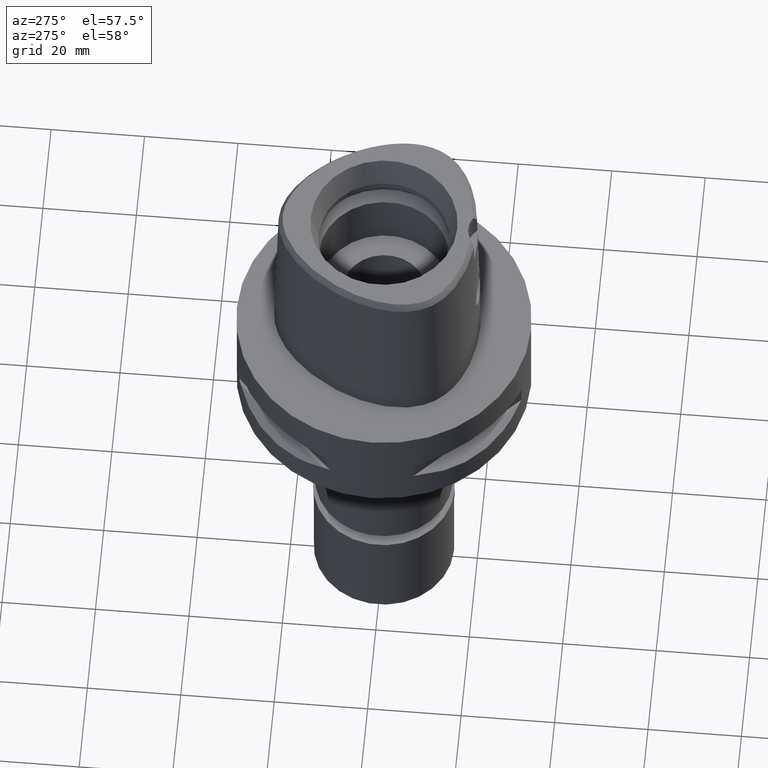
[diagram: clean part render]
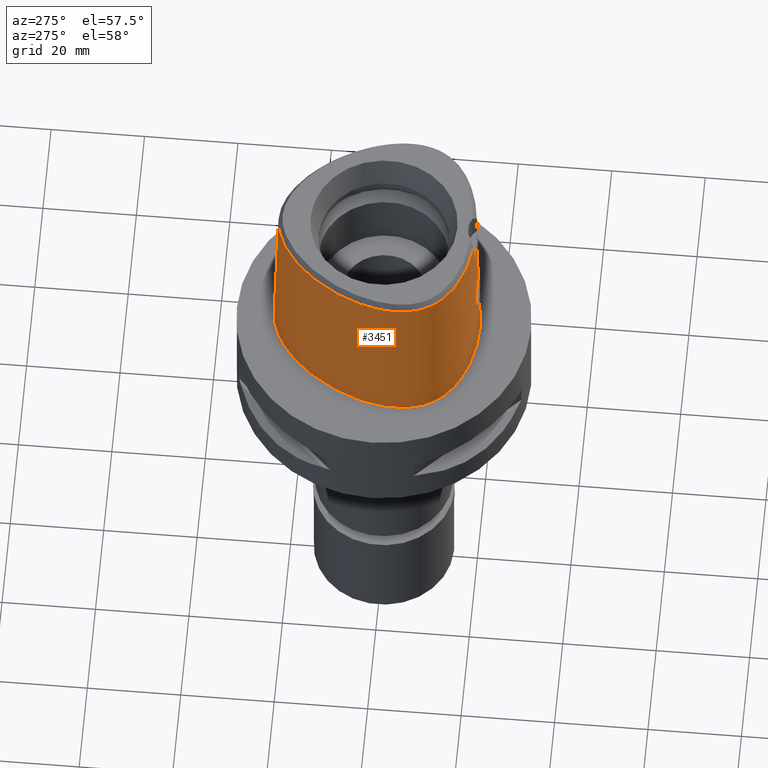
[diagram: same view with one face highlighted and labeled with its STEP entity id]
A machine part, auxiliary view. The second image highlights one B-rep face of the part: STEP entity #3451.
In plain terms, the highlighted face is a freeform B-spline surface patch.
Its self-contained STEP definition (entity closure, byte-faithful):
#5 = CARTESIAN_POINT ( 'NONE',  ( -1.639185563608921870, -20.34198538413699708, 11.79635015064743087 ) ) ;
#28 = CARTESIAN_POINT ( 'NONE',  ( -21.07430010672434406, -0.4408303445192736092, 36.52186244848014240 ) ) ;
#30 = CARTESIAN_POINT ( 'NONE',  ( -3.555353688881816243, -20.15553030557638436, 13.55928930398455634 ) ) ;
#44 = CARTESIAN_POINT ( 'NONE',  ( -1.411580633884000040E-12, -20.38876923348000147, 11.44999999999999929 ) ) ;
#51 = CARTESIAN_POINT ( 'NONE',  ( -1.759243967469238390, -20.33482228134714020, 11.85157092676202595 ) ) ;
#63 = CARTESIAN_POINT ( 'NONE',  ( -0.5985508172615999767, 23.20171275348999984, 11.93048308773999899 ) ) ;
#83 = CARTESIAN_POINT ( 'NONE',  ( -5.105252916668000296, 22.54305024381000067, -0.7304377400654999963 ) ) ;
#94 = CARTESIAN_POINT ( 'NONE',  ( -3.389739493399352099, -20.17894355656678229, 13.28363948217883994 ) ) ;
#104 = CARTESIAN_POINT ( 'NONE',  ( -19.81622820287999787, -11.44090468607999966, 24.59140391553999905 ) ) ;
#107 = CARTESIAN_POINT ( 'NONE',  ( -3.736722311398999796, -19.67781602443999844, 31.80000000000000071 ) ) ;
#126 = CARTESIAN_POINT ( 'NONE',  ( -17.53318574470999991, 10.12278927931999917, 24.59140391553999905 ) ) ;
#155 = CARTESIAN_POINT ( 'NONE',  ( -21.36961497871000049, -0.3886497959562999482, 24.59140391553999905 ) ) ;
#184 = CARTESIAN_POINT ( 'NONE',  ( -19.86834417845000189, 4.339653619979999988, 37.25232474333999733 ) ) ;
#207 = CARTESIAN_POINT ( 'NONE',  ( -11.23887130303999982, -18.91049776158000029, -0.7304377400654999963 ) ) ;
#209 = CARTESIAN_POINT ( 'NONE',  ( -1.411580633884000040E-12, -20.38876923348000147, 11.44999999999999929 ) ) ;
#231 = CARTESIAN_POINT ( 'NONE',  ( -1.853278689247999989, -20.08023920256999872, 24.59140391553999905 ) ) ;
#267 = B_SPLINE_CURVE_WITH_KNOTS ( 'NONE', 3,
 ( #1458, #499, #4378, #676 ),
 .UNSPECIFIED., .F., .F.,
 ( 4, 4 ),
 ( 0.0000000000000000000, 1.000000000000000000 ),
 .UNSPECIFIED. ) ;
#277 = CARTESIAN_POINT ( 'NONE',  ( -3.705475290800099408, -20.04991649410048993, 17.13499064592632948 ) ) ;
#298 = CARTESIAN_POINT ( 'NONE',  ( -3.637738201363999835, -19.56971413236999879, 36.52186244848000030 ) ) ;
#300 = CARTESIAN_POINT ( 'NONE',  ( -2.564517724904749940, 23.29328124017246182, 3.994300278443822794E-07 ) ) ;
#301 = CARTESIAN_POINT ( 'NONE',  ( -4.049991164169638225, -20.05857906447834083, 15.25487954168660565 ) ) ;
#306 = CARTESIAN_POINT ( 'NONE',  ( -6.288476575902000043, -20.00290569770000104, 11.93048308773999899 ) ) ;
#316 = EDGE_CURVE ( 'NONE', #1640, #482, #4794, .T. ) ;
#318 = CARTESIAN_POINT ( 'NONE',  ( -22.05732873329699828, -6.847636717323190680, 3.994300278443822794E-07 ) ) ;
#319 = CARTESIAN_POINT ( 'NONE',  ( -1.541208922968984041, -20.16000456222777615, 19.24528769699746533 ) ) ;
#341 = CARTESIAN_POINT ( 'NONE',  ( -10.15538788053403430, 18.47129535094069297, 36.52186244848014240 ) ) ;
#342 = CARTESIAN_POINT ( 'NONE',  ( -19.64947365054584694, -12.82525390036613544, 3.994300278443822794E-07 ) ) ;
#353 = DIRECTION ( 'NONE',  ( 2.016561690093959446E-12, 0.02499051290953949525, -0.9996876883629797206 ) ) ;
#368 = CARTESIAN_POINT ( 'NONE',  ( -20.67704215116265587, -8.734985316449067838, 36.52186244848014240 ) ) ;
#371 = CARTESIAN_POINT ( 'NONE',  ( -2.579212219879708279, -20.11417525617202173, 18.62393914780298587 ) ) ;
#379 = CARTESIAN_POINT ( 'NONE',  ( -2.503154198993273738, -19.81241979316428115, 31.80000012753037808 ) ) ;
#387 = CARTESIAN_POINT ( 'NONE',  ( -17.90324032096835438, -13.53935111955521542, 36.52186244848014240 ) ) ;
#405 = FACE_OUTER_BOUND ( 'NONE', #3618, .T. ) ;
#427 = CARTESIAN_POINT ( 'NONE',  ( 0.4696382037677999666, 23.16972803167999828, 11.93048308773999899 ) ) ;
#471 = CARTESIAN_POINT ( 'NONE',  ( -20.36546124644000244, -11.75800453283000024, -0.7304377400654999963 ) ) ;
#482 = VERTEX_POINT ( 'NONE', #1934 ) ;
#484 = CARTESIAN_POINT ( 'NONE',  ( -3.379448912167822172, -20.18033630381625443, 13.26798010131731331 ) ) ;
#495 = CARTESIAN_POINT ( 'NONE',  ( -21.57281239408000317, -9.001246195619000190, -0.7304377400654999963 ) ) ;
#499 = CARTESIAN_POINT ( 'NONE',  ( 6.819703739716780851E-09, -19.98212988583101790, 27.71666688228259545 ) ) ;
#507 = EDGE_CURVE ( 'NONE', #3300, #1688, #3680, .T. ) ;
#517 = CARTESIAN_POINT ( 'NONE',  ( -14.17879757340999980, 15.44741194272999962, 11.93048308773999899 ) ) ;
#523 = ORIENTED_EDGE ( 'NONE', *, *, #1707, .F. ) ;
#541 = CARTESIAN_POINT ( 'NONE',  ( -21.26836740496000289, -8.910752242396000611, 11.93048308773999899 ) ) ;
#568 = CARTESIAN_POINT ( 'NONE',  ( -18.89485272711999997, -12.27684369619000115, 37.25232474333999733 ) ) ;
#586 = CARTESIAN_POINT ( 'NONE',  ( -7.300578999876274899, -19.07170748892199796, 36.52186244848014240 ) ) ;
#596 = CARTESIAN_POINT ( 'NONE',  ( -6.344715576965000103, -20.31619965116999893, -0.7304377400654999963 ) ) ;
#639 = VECTOR ( 'NONE', #353, 1000.000000000000227 ) ;
#648 = CARTESIAN_POINT ( 'NONE',  ( -2.685803277208806961, -20.10852690937534248, 18.53169401898058410 ) ) ;
#670 = CARTESIAN_POINT ( 'NONE',  ( -18.56841064415174714, -14.16937987592243609, 3.994300278443822794E-07 ) ) ;
#672 = CARTESIAN_POINT ( 'NONE',  ( -4.050001101516883750, -20.05164114608707493, 15.53047576970554111 ) ) ;
#676 = CARTESIAN_POINT ( 'NONE',  ( 0.0000000000000000000, -20.18628283968999781, 19.55000000000000071 ) ) ;
#692 = CARTESIAN_POINT ( 'NONE',  ( -22.24453906853196372, -4.100468750058610112, 3.994300278443822794E-07 ) ) ;
#693 = CARTESIAN_POINT ( 'NONE',  ( -3.863132420271260248, -20.10448016581889519, 14.28204754537439491 ) ) ;
#715 = CARTESIAN_POINT ( 'NONE',  ( -4.048105863292255080, -20.04942016345448508, 15.62793836080965448 ) ) ;
#741 = CARTESIAN_POINT ( 'NONE',  ( -3.831110783833282962, -20.11049369512188179, 14.18332465926799557 ) ) ;
#831 = CARTESIAN_POINT ( 'NONE',  ( -0.5657070262429999552, 22.56734895888000025, 37.25232474333999733 ) ) ;
#841 = CARTESIAN_POINT ( 'NONE',  ( 0.0000000000000000000, -20.18628283968999781, 19.55000000000000071 ) ) ;
#846 = CARTESIAN_POINT ( 'NONE',  ( -2.888194500252307950, -20.23966132612294189, 12.66082734282444022 ) ) ;
#862 = CARTESIAN_POINT ( 'NONE',  ( -20.36913767849999957, -10.35391840640999916, 24.59140391553999905 ) ) ;
#875 = CARTESIAN_POINT ( 'NONE',  ( -3.089969664571798003, -20.21675136509658444, 12.88103192484808623 ) ) ;
#886 = CARTESIAN_POINT ( 'NONE',  ( -18.08416038448999785, 10.44089487289000040, -0.7304377400654999963 ) ) ;
#908 = CARTESIAN_POINT ( 'NONE',  ( -18.35112153072000041, -13.96357034844000111, 11.93048308773999899 ) ) ;
#933 = CARTESIAN_POINT ( 'NONE',  ( -16.97022731203999868, -15.69280483234000023, -0.7304377400654999963 ) ) ;
#959 = CARTESIAN_POINT ( 'NONE',  ( -20.65947742672999610, -8.729764335949999676, 37.25232474333999733 ) ) ;
#979 = EDGE_CURVE ( 'NONE', #482, #2276, #4811, .T. ) ;
#983 = CARTESIAN_POINT ( 'NONE',  ( -11.02138179633000092, -18.31230452703000111, 24.59140391553999905 ) ) ;
#1013 = CARTESIAN_POINT ( 'NONE',  ( -6.232237574837999894, -19.68961174422999960, 24.59140391553999905 ) ) ;
#1034 = CARTESIAN_POINT ( 'NONE',  ( -1.492173162164738054, -20.16163462174872478, 19.26516428407792958 ) ) ;
#1054 = CARTESIAN_POINT ( 'NONE',  ( -2.113823672471562443, -20.67499999001354993, 3.994300278443822794E-07 ) ) ;
#1055 = CARTESIAN_POINT ( 'NONE',  ( -3.688790142058717691, -20.05078424352735311, 17.17215114718345248 ) ) ;
#1062 = CARTESIAN_POINT ( 'NONE',  ( -14.68244497194000076, -17.23001773161000116, -0.7304377400654999963 ) ) ;
#1073 = CARTESIAN_POINT ( 'NONE',  ( -6.341471017437043223, -20.29812499012442117, 3.994300278443822794E-07 ) ) ;
#1074 = CARTESIAN_POINT ( 'NONE',  ( -3.921647266107779473, -20.09302247488048465, 14.47922390635994638 ) ) ;
#1102 = CARTESIAN_POINT ( 'NONE',  ( -3.548491267969900775, -20.05855977212222285, 17.45564719119938957 ) ) ;
#1126 = CARTESIAN_POINT ( 'NONE',  ( -3.094221445719640418, -20.08547791185546671, 18.13289203450468179 ) ) ;
#1148 = CARTESIAN_POINT ( 'NONE',  ( -10.74572890413436710, 19.17433592981602786, 3.994300278443822794E-07 ) ) ;
#1170 = CARTESIAN_POINT ( 'NONE',  ( -1.035565736698859540, -20.37488206772132671, 11.54566845263168418 ) ) ;
#1182 = CARTESIAN_POINT ( 'NONE',  ( -1.251533273950370173, -19.88005341380056379, 31.80000012753037808 ) ) ;
#1186 = CARTESIAN_POINT ( 'NONE',  ( -1.574539081985000086E-11, 22.56201468012000078, 36.52186680743999858 ) ) ;
#1190 = CARTESIAN_POINT ( 'NONE',  ( -21.14970188364198833, -6.717195958887629992, 36.52186244848014240 ) ) ;
#1218 = CARTESIAN_POINT ( 'NONE',  ( -3.373622083368129410, -20.18112174943328796, 13.25918700308295506 ) ) ;
#1229 = CARTESIAN_POINT ( 'NONE',  ( -13.93560862564000047, 15.24203788195999998, 24.59140391553999905 ) ) ;
#1244 = CARTESIAN_POINT ( 'NONE',  ( -1.560355696759921473, -20.34639701615905594, 11.76264258800381768 ) ) ;
#1257 = CARTESIAN_POINT ( 'NONE',  ( -20.94844326004000123, -10.61175397060999970, -0.7304377400654999963 ) ) ;
#1262 = CARTESIAN_POINT ( 'NONE',  ( -3.671249123513567802, -19.60525173594972514, 34.94790829898666829 ) ) ;
#1282 = CARTESIAN_POINT ( 'NONE',  ( -7.420053127020000083, 21.05635743451999886, 11.93048308773999899 ) ) ;
#1303 = CARTESIAN_POINT ( 'NONE',  ( -10.75753573913000061, 19.18839675869000061, -0.7304377400654999963 ) ) ;
#1327 = CARTESIAN_POINT ( 'NONE',  ( -10.14358065508999829, 18.45723405708000087, 37.25232474333999733 ) ) ;
#1352 = CARTESIAN_POINT ( 'NONE',  ( -14.52531262431999792, -16.95413746698000068, 11.93048308773999899 ) ) ;
#1378 = CARTESIAN_POINT ( 'NONE',  ( 0.6718639822806999895, -20.05378884866999911, 24.59140391553999905 ) ) ;
#1396 = CARTESIAN_POINT ( 'NONE',  ( -0.8548392415921040044, 23.47499999001797732, 3.994300278443822794E-07 ) ) ;
#1397 = CARTESIAN_POINT ( 'NONE',  ( -2.848393617364126662, -20.09954434837571569, 18.37909619521881766 ) ) ;
#1404 = CARTESIAN_POINT ( 'NONE',  ( -3.637738201363999835, -19.56971413236999879, 36.52186244848000030 ) ) ;
#1405 = CARTESIAN_POINT ( 'NONE',  ( 0.4560943670299999475, -20.69106768631000293, -0.7304377400654999963 ) ) ;
#1427 = CARTESIAN_POINT ( 'NONE',  ( -4.037759023262812441, -20.04580368680737479, 15.82130602178965972 ) ) ;
#1452 = CARTESIAN_POINT ( 'NONE',  ( -2.739597917330728993, -20.10562682292702164, 18.48351814821647920 ) ) ;
#1458 = CARTESIAN_POINT ( 'NONE',  ( 2.041042029990999821E-08, -19.88004246002000031, 31.80000004972000127 ) ) ;
#1474 = CARTESIAN_POINT ( 'NONE',  ( -21.55524825048760107, -8.996025387770435700, 3.994300278443822794E-07 ) ) ;
#1475 = CARTESIAN_POINT ( 'NONE',  ( -3.738177350521992626, -20.04830169580310084, 17.05839787256081053 ) ) ;
#1489 = CARTESIAN_POINT ( 'NONE',  ( 0.4441906996813999586, 22.53710772775000137, 37.25232474333999733 ) ) ;
#1502 = CARTESIAN_POINT ( 'NONE',  ( -0.5033522689846766651, -20.18406998898231564, 19.52732573209351585 ) ) ;
#1525 = CARTESIAN_POINT ( 'NONE',  ( -2.376843896517972787, 22.39422508474270046, 36.52186244848014240 ) ) ;
#1528 = CARTESIAN_POINT ( 'NONE',  ( -0.5046927223822457176, -20.38876923347999792, 11.45000000000000107 ) ) ;
#1548 = CARTESIAN_POINT ( 'NONE',  ( -7.108589416785669357, 20.52412325828526107, 36.52186244848014240 ) ) ;
#1571 = CARTESIAN_POINT ( 'NONE',  ( -16.39211280191499043, -14.95758113318786720, 36.52186244848014240 ) ) ;
#1575 = CARTESIAN_POINT ( 'NONE',  ( -1.679056856599390857, -20.33964578500378906, 11.81433363118854807 ) ) ;
#1613 = CARTESIAN_POINT ( 'NONE',  ( -17.25769842481999561, 9.963736482537001393, 37.25232474333999733 ) ) ;
#1622 = CARTESIAN_POINT ( 'NONE',  ( -2.648669343462628945, -20.26586252166265822, 12.42094739490373101 ) ) ;
#1633 = CARTESIAN_POINT ( 'NONE',  ( -21.62788397070999835, -4.104079498653000257, 24.59140391553999905 ) ) ;
#1636 = CARTESIAN_POINT ( 'NONE',  ( -3.637738201363999835, -19.56971413236999879, 36.52186244848000030 ) ) ;
#1640 = VERTEX_POINT ( 'NONE', #1186 ) ;
#1655 = CARTESIAN_POINT ( 'NONE',  ( -4.987110660661000061, 22.24795278873000015, 11.93048308773999899 ) ) ;
#1665 = EDGE_CURVE ( 'NONE', #1877, #1688, #4160, .T. ) ;
#1682 = CARTESIAN_POINT ( 'NONE',  ( -21.13154872401999995, -6.714587054236999641, 37.25232474333999733 ) ) ;
#1688 = VERTEX_POINT ( 'NONE', #107 ) ;
#1707 = EDGE_CURVE ( 'NONE', #3300, #4719, #267, .T. ) ;
#1708 = CARTESIAN_POINT ( 'NONE',  ( -13.69241967787000114, 15.03666382119000033, 37.25232474333999733 ) ) ;
#1761 = CARTESIAN_POINT ( 'NONE',  ( -6.175998573773999745, -19.37631779075999816, 37.25232474333999733 ) ) ;
#1802 = CARTESIAN_POINT ( 'NONE',  ( -3.723830241718077083, -20.04899916043824248, 17.09244749948918596 ) ) ;
#1809 = CARTESIAN_POINT ( 'NONE',  ( -1.870070490779999872, -20.39691390160000140, 11.93048308773999899 ) ) ;
#1827 = CARTESIAN_POINT ( 'NONE',  ( -3.953281488374225994, -20.08614317114498249, 14.61030734249881924 ) ) ;
#1852 = CARTESIAN_POINT ( 'NONE',  ( -14.22011356156233397, -16.41829364186049389, 36.52186244848014240 ) ) ;
#1854 = CARTESIAN_POINT ( 'NONE',  ( -11.23259756383908936, -18.89324217807018158, 3.994300278443822794E-07 ) ) ;
#1855 = CARTESIAN_POINT ( 'NONE',  ( -3.486840540287187817, -20.06217718548419882, 17.56443860009948210 ) ) ;
#1874 = CARTESIAN_POINT ( 'NONE',  ( -7.571159429291724585, 21.31457030385220008, 3.994300278443822794E-07 ) ) ;
#1875 = CARTESIAN_POINT ( 'NONE',  ( -3.788754699352709920, -20.11800767601783946, 14.06821503892709480 ) ) ;
#1877 = VERTEX_POINT ( 'NONE', #1404 ) ;
#1888 = B_SPLINE_CURVE_WITH_KNOTS ( 'NONE', 3,
 ( #4092, #4868, #1502, #1903, #2929, #2202, #3718, #4838, #1034, #4892, #4566, #319, #2627, #3737, #4471, #2602, #2272, #2249, #3802, #371, #648, #1452, #2550, #2958, #1397, #4142, #4916, #1126, #3392, #1855, #1102, #4186, #2182, #1055, #277, #1802, #3033, #4493, #1475, #2578, #4517, #3368, #3345, #1427, #4117, #715, #4164, #672, #301, #2985, #1827, #1074, #693, #741, #1875, #2223, #3005, #3781, #3414, #4941, #2650, #30, #3108, #3924, #2402, #2749, #94, #484, #1218, #3083, #4287, #875, #4263, #3483, #3435, #846, #4239, #3133, #1622, #2351, #3506, #3063, #4636, #51, #1575, #5, #2377, #2727, #1244, #4610, #1170, #1528, #2705 ),
 .UNSPECIFIED., .F., .F.,
 ( 4, 2, 2, 1, 1, 1, 1, 1, 2, 2, 2, 2, 2, 1, 1, 1, 2, 2, 2, 2, 2, 1, 1, 2, 2, 2, 2, 1, 2, 2, 2, 2, 1, 1, 1, 2, 2, 2, 2, 1, 1, 2, 2, 2, 1, 1, 1, 2, 2, 2, 2, 2, 1, 1, 2, 2, 4 ),
 ( 0.0000000000000000000, 0.06250000000001693090, 0.09375000000002547962, 0.1093750000000298928, 0.1171875000000320993, 0.1210937500000332095, 0.1230468750000337369, 0.1240234375000339867, 0.1245117187500340977, 0.1250000000000342226, 0.1875000000000474065, 0.2187500000000542066, 0.2343750000000575928, 0.2421875000000593414, 0.2460937500000601741, 0.2480468750000605904, 0.2490234375000605904, 0.2500000000000606182, 0.3125000000000602296, 0.3437500000000603406, 0.3593750000000600076, 0.3671875000000598410, 0.3710937500000592859, 0.3730468750000590084, 0.3750000000000587863, 0.4375000000000601186, 0.4687500000000611733, 0.4843750000000617839, 0.4921875000000616174, 0.5000000000000610623, 0.5625000000000587308, 0.5937500000000577316, 0.6093750000000571765, 0.6171875000000570655, 0.6210937500000567324, 0.6230468750000566214, 0.6250000000000565104, 0.6562500000000565104, 0.6718750000000565104, 0.6796875000000562883, 0.6835937500000560663, 0.6855468750000558442, 0.6875000000000555112, 0.7187500000000519584, 0.7343750000000501821, 0.7421875000000490719, 0.7460937500000482947, 0.7480468750000478506, 0.7500000000000474065, 0.8125000000000380806, 0.8437500000000336398, 0.8593750000000313083, 0.8671875000000301981, 0.8710937500000294209, 0.8730468750000290878, 0.8750000000000287548, 1.000000000000000000 ),
 .UNSPECIFIED. ) ;
#1903 = CARTESIAN_POINT ( 'NONE',  ( -0.8936985315167398358, -20.17743143685925844, 19.45238623486286755 ) ) ;
#1934 = CARTESIAN_POINT ( 'NONE',  ( 5.792621513459000158E-11, 23.47499999999000053, 1.460313351723999876E-13 ) ) ;
#1935 = CARTESIAN_POINT ( 'NONE',  ( 0.7042335263255999900, 23.15549818141000316, 11.93048308773999899 ) ) ;
#1955 = CARTESIAN_POINT ( 'NONE',  ( 0.4569144517245999904, 22.85341787971000116, 24.59140391553999905 ) ) ;
#2008 = CARTESIAN_POINT ( 'NONE',  ( -20.16779730249000124, 4.447573631490000068, 24.59140391553999905 ) ) ;
#2029 = EDGE_CURVE ( 'NONE', #4719, #2681, #1888, .T. ) ;
#2030 = CARTESIAN_POINT ( 'NONE',  ( -19.54161168109000002, -11.28235476270999982, 37.25232474333999733 ) ) ;
#2054 = CARTESIAN_POINT ( 'NONE',  ( -19.15132520058000054, -12.46323147999999925, 24.59140391553999905 ) ) ;
#2082 = CARTESIAN_POINT ( 'NONE',  ( -16.57726032717999942, -15.19304460284999969, 24.59140391553999905 ) ) ;
#2109 = LINE ( 'NONE', #209, #2761 ) ;
#2139 = CARTESIAN_POINT ( 'NONE',  ( -14.36818027668999775, -16.67825720233999931, 24.59140391553999905 ) ) ;
#2163 = CARTESIAN_POINT ( 'NONE',  ( 0.4479792487285000346, -20.05810147696999834, 24.59140391553999905 ) ) ;
#2182 = CARTESIAN_POINT ( 'NONE',  ( -3.654082109992319083, -20.05262836028861528, 17.24735017044101326 ) ) ;
#2202 = CARTESIAN_POINT ( 'NONE',  ( -1.221671502416865618, -20.16968645938236193, 19.36195646919879465 ) ) ;
#2223 = CARTESIAN_POINT ( 'NONE',  ( -3.766309051656988149, -20.12188921564309396, 14.01071726660022954 ) ) ;
#2245 = CARTESIAN_POINT ( 'NONE',  ( -20.09619618740691394, -10.23243843868715430, 36.52186244848014240 ) ) ;
#2249 = CARTESIAN_POINT ( 'NONE',  ( -2.306524641797889963, -20.12782047069664415, 18.83334817884013290 ) ) ;
#2272 = CARTESIAN_POINT ( 'NONE',  ( -2.179591146148854630, -20.13373212135905632, 18.91607204246386686 ) ) ;
#2276 = VERTEX_POINT ( 'NONE', #2875 ) ;
#2296 = CARTESIAN_POINT ( 'NONE',  ( -3.704239276368590961, -19.64128040965313460, 33.37395414949332917 ) ) ;
#2325 = CARTESIAN_POINT ( 'NONE',  ( -19.88562090098576363, 4.345879983792007017, 36.52186244848014240 ) ) ;
#2351 = CARTESIAN_POINT ( 'NONE',  ( -2.422529289554541165, -20.28642148555888269, 12.24354629270996497 ) ) ;
#2363 = CARTESIAN_POINT ( 'NONE',  ( 0.6658292885454999421, 22.52368268783000005, 37.25232474333999733 ) ) ;
#2377 = CARTESIAN_POINT ( 'NONE',  ( -1.593096140670196892, -20.34458864924262755, 11.77643983586582621 ) ) ;
#2389 = CARTESIAN_POINT ( 'NONE',  ( -10.34823234977000084, 18.70095495761000137, 24.59140391553999905 ) ) ;
#2402 = CARTESIAN_POINT ( 'NONE',  ( -3.439748149982876591, -20.17209784832980546, 13.36154523445410014 ) ) ;
#2411 = CARTESIAN_POINT ( 'NONE',  ( -10.55288404444999983, 18.94467585814999921, 11.93048308773999899 ) ) ;
#2433 = CARTESIAN_POINT ( 'NONE',  ( -7.580410840922000126, 21.33037926421000208, -0.7304377400654999963 ) ) ;
#2458 = CARTESIAN_POINT ( 'NONE',  ( -16.77374381960999727, -15.44292471758999952, 11.93048308773999899 ) ) ;
#2484 = CARTESIAN_POINT ( 'NONE',  ( -19.40779767404000111, -12.64961926380999913, 11.93048308773999899 ) ) ;
#2550 = CARTESIAN_POINT ( 'NONE',  ( -2.802956782588828855, -20.10211054089981175, 18.42353371406406026 ) ) ;
#2578 = CARTESIAN_POINT ( 'NONE',  ( -3.846731183066159243, -20.04313691262844799, 16.79644296392004321 ) ) ;
#2602 = CARTESIAN_POINT ( 'NONE',  ( -1.836592953818659613, -20.14903785574659167, 19.11940456106782449 ) ) ;
#2603 = ORIENTED_EDGE ( 'NONE', *, *, #507, .T. ) ;
#2624 = CARTESIAN_POINT ( 'NONE',  ( -0.7901461696976538329, 22.56201478746399047, 36.52186244848014240 ) ) ;
#2627 = CARTESIAN_POINT ( 'NONE',  ( -1.545292700560349619, -20.15986679930531977, 19.24360459278416968 ) ) ;
#2650 = CARTESIAN_POINT ( 'NONE',  ( -3.647803070788727897, -20.14155863430687177, 13.73545354511662353 ) ) ;
#2676 = CARTESIAN_POINT ( 'NONE',  ( -5.098437013555799702, 22.52602538132249776, 3.994300278443822794E-07 ) ) ;
#2681 = VERTEX_POINT ( 'NONE', #44 ) ;
#2705 = CARTESIAN_POINT ( 'NONE',  ( -1.411580633884000040E-12, -20.38876923348000147, 11.44999999999999929 ) ) ;
#2724 = CARTESIAN_POINT ( 'NONE',  ( -17.27359245832898438, 9.972912913897898690, 36.52186244848014240 ) ) ;
#2727 = CARTESIAN_POINT ( 'NONE',  ( -1.573438904371460723, -20.34567727702725293, 11.76813178962274975 ) ) ;
#2739 = CARTESIAN_POINT ( 'NONE',  ( 0.7234356452155999984, 23.47140592819999938, -0.7304377400654999963 ) ) ;
#2749 = CARTESIAN_POINT ( 'NONE',  ( -3.405034576981469385, -20.17686585775810570, 13.30709190861463931 ) ) ;
#2760 = CARTESIAN_POINT ( 'NONE',  ( -20.46725042652999704, 4.555493643000000148, 11.93048308773999899 ) ) ;
#2761 = VECTOR ( 'NONE', #3675, 1000.000000000000114 ) ;
#2788 = CARTESIAN_POINT ( 'NONE',  ( -2.373090291188999945, 22.37624334489000333, 37.25232474333999733 ) ) ;
#2812 = CARTESIAN_POINT ( 'NONE',  ( -21.94536976880000267, -4.102220499345999194, 11.93048308773999899 ) ) ;
#2831 = CARTESIAN_POINT ( 'NONE',  ( -18.12052899445999898, -13.74516023033999979, 24.59140391553999905 ) ) ;
#2862 = CARTESIAN_POINT ( 'NONE',  ( -4.750826148646999592, 21.65775787858000001, 37.25232474333999733 ) ) ;
#2875 = CARTESIAN_POINT ( 'NONE',  ( -1.131693947722000185E-11, -20.67499999999999716, 1.488068927338999721E-13 ) ) ;
#2929 = CARTESIAN_POINT ( 'NONE',  ( -1.024788778389420285, -20.17466537347465660, 19.42059486288786019 ) ) ;
#2957 = CARTESIAN_POINT ( 'NONE',  ( -20.93173251297291415, -10.60431640219094440, 3.994300278443822794E-07 ) ) ;
#2958 = CARTESIAN_POINT ( 'NONE',  ( -2.834748561464164318, -20.10031918792685346, 18.39257420727604497 ) ) ;
#2985 = CARTESIAN_POINT ( 'NONE',  ( -4.027708417463871093, -20.06778273060875861, 14.99998489180213745 ) ) ;
#3005 = CARTESIAN_POINT ( 'NONE',  ( -3.756415959144510541, -20.12357942173476744, 13.98609195692763407 ) ) ;
#3033 = CARTESIAN_POINT ( 'NONE',  ( -3.731464861317557613, -20.04862638329780467, 17.07439268154362111 ) ) ;
#3060 = CARTESIAN_POINT ( 'NONE',  ( -10.91891098965153439, -18.03046406390607714, 36.52186244848014240 ) ) ;
#3062 = CARTESIAN_POINT ( 'NONE',  ( -14.67337963923542787, -17.21410155379318141, 3.994300278443822794E-07 ) ) ;
#3063 = CARTESIAN_POINT ( 'NONE',  ( -1.976849375238147966, -20.32061275462067940, 11.96309921320507286 ) ) ;
#3079 = CARTESIAN_POINT ( 'NONE',  ( -1.574539081985000086E-11, 22.56201468012000078, 36.52186680743999858 ) ) ;
#3083 = CARTESIAN_POINT ( 'NONE',  ( -3.295336358565692958, -20.19164005229839631, 13.14184743696886493 ) ) ;
#3095 = CARTESIAN_POINT ( 'NONE',  ( 2.041042029990999821E-08, -19.88004246002000031, 31.80000004972000127 ) ) ;
#3105 = CARTESIAN_POINT ( 'NONE',  ( -4.757642277159018995, 21.67478330407389819, 36.52186244848014240 ) ) ;
#3108 = CARTESIAN_POINT ( 'NONE',  ( -3.522024820842043269, -20.16043120006391476, 13.49928235552874511 ) ) ;
#3121 = CARTESIAN_POINT ( 'NONE',  ( -0.5821289217523000215, 22.88453085619000049, 24.59140391553999905 ) ) ;
#3133 = CARTESIAN_POINT ( 'NONE',  ( -2.871579422569847218, -20.24148637155979813, 12.64401979307113244 ) ) ;
#3145 = CARTESIAN_POINT ( 'NONE',  ( -7.099337699213999819, 20.50831377513000220, 37.25232474333999733 ) ) ;
#3168 = CARTESIAN_POINT ( 'NONE',  ( -21.99640701745000015, -0.2778990159617000244, -0.7304377400654999963 ) ) ;
#3195 = CARTESIAN_POINT ( 'NONE',  ( -21.31039817261000024, -4.105938497958999456, 37.25232474333999733 ) ) ;
#3225 = CARTESIAN_POINT ( 'NONE',  ( -21.05621895934000065, -0.4440251859534999346, 37.25232474333999733 ) ) ;
#3235 = ORIENTED_EDGE ( 'NONE', *, *, #316, .T. ) ;
#3238 = ORIENTED_EDGE ( 'NONE', *, *, #979, .T. ) ;
#3251 = CARTESIAN_POINT ( 'NONE',  ( -14.42198652117999913, 15.65278600349999749, -0.7304377400654999963 ) ) ;
#3276 = CARTESIAN_POINT ( 'NONE',  ( 0.4439216895777000071, -19.74161837230999694, 37.25232474333999733 ) ) ;
#3300 = VERTEX_POINT ( 'NONE', #3095 ) ;
#3303 = CARTESIAN_POINT ( 'NONE',  ( 0.4520368078791999755, -20.37458458164000064, 11.93048308773999899 ) ) ;
#3328 = CARTESIAN_POINT ( 'NONE',  ( 0.6779535338332000061, -20.37023520002000154, 11.93048308773999899 ) ) ;
#3345 = CARTESIAN_POINT ( 'NONE',  ( -4.019146430044867380, -20.04312555158109888, 16.01565873615390956 ) ) ;
#3355 = CARTESIAN_POINT ( 'NONE',  ( 0.6840430853857001336, -20.68668155137999776, -0.7304377400654999963 ) ) ;
#3368 = CARTESIAN_POINT ( 'NONE',  ( -4.000370311114593846, -20.04205505489374062, 16.14584869193781458 ) ) ;
#3392 = CARTESIAN_POINT ( 'NONE',  ( -3.273844060727177485, -20.07476731209059295, 17.89881216728724667 ) ) ;
#3413 = CARTESIAN_POINT ( 'NONE',  ( -14.40795638190569683, 15.64093749351484064, 3.994300278443822794E-07 ) ) ;
#3414 = CARTESIAN_POINT ( 'NONE',  ( -3.745737709883754984, -20.12539347044916482, 13.95987014779523427 ) ) ;
#3435 = CARTESIAN_POINT ( 'NONE',  ( -2.905626753378292015, -20.23774039646162848, 12.67859695937602815 ) ) ;
#3451 = ADVANCED_FACE ( 'NONE', ( #405 ), #4435, .T. ) ;
#3457 = CARTESIAN_POINT ( 'NONE',  ( -13.70645028111669284, 15.04851272300173548, 36.52186244848014240 ) ) ;
#3472 = CARTESIAN_POINT ( 'NONE',  ( 0.6850314074355999816, 22.83959043461999983, 24.59140391553999905 ) ) ;
#3483 = CARTESIAN_POINT ( 'NONE',  ( -2.945918602317308732, -20.23326565856292447, 12.72043322215213834 ) ) ;
#3498 = CARTESIAN_POINT ( 'NONE',  ( -0.6149727127709000429, 23.51889465080000008, -0.7304377400654999963 ) ) ;
#3506 = CARTESIAN_POINT ( 'NONE',  ( -2.087766280167977939, -20.31264215891611613, 12.02704856267587452 ) ) ;
#3519 = CARTESIAN_POINT ( 'NONE',  ( -18.58171406698000183, -14.18198046654999978, -0.7304377400654999963 ) ) ;
#3543 = CARTESIAN_POINT ( 'NONE',  ( -20.09084472466000193, -11.59945460946000040, 11.93048308773999899 ) ) ;
#3567 = CARTESIAN_POINT ( 'NONE',  ( -2.438150596155999938, 22.68791635839000165, 24.59140391553999905 ) ) ;
#3594 = CARTESIAN_POINT ( 'NONE',  ( -7.259695413116999951, 20.78233560481999831, 24.59140391553999905 ) ) ;
#3618 = EDGE_LOOP ( 'NONE', ( #4825, #4376, #523, #2603, #4890, #4210, #3235, #3238 ) ) ;
#3622 = CARTESIAN_POINT ( 'NONE',  ( -16.38077683474999802, -14.94316448809999898, 37.25232474333999733 ) ) ;
#3674 = CARTESIAN_POINT ( 'NONE',  ( -1.836486887715999883, -19.76356450355000050, 37.25232474333999733 ) ) ;
#3675 = DIRECTION ( 'NONE',  ( -8.648266624004811992E-13, -0.02499051295360945474, -0.9996876883618780463 ) ) ;
#3680 = B_SPLINE_CURVE_WITH_KNOTS ( 'NONE', 3,
 ( #3771, #1182, #379, #4624 ),
 .UNSPECIFIED., .F., .F.,
 ( 4, 4 ),
 ( 0.0000000000000000000, 1.000000000000000000 ),
 .UNSPECIFIED. ) ;
#3718 = CARTESIAN_POINT ( 'NONE',  ( -1.320171909882389194, -20.16698954758235374, 19.32990114435346740 ) ) ;
#3723 = CARTESIAN_POINT ( 'NONE',  ( -1.886862292311999978, -20.71358860062999696, -0.7304377400654999963 ) ) ;
#3737 = CARTESIAN_POINT ( 'NONE',  ( -1.548516564437249388, -20.15975773986437503, 19.24227167837479868 ) ) ;
#3744 = CARTESIAN_POINT ( 'NONE',  ( -14.21104792907000025, -16.40237693770000149, 37.25232474333999733 ) ) ;
#3756 = CARTESIAN_POINT ( 'NONE',  ( -19.55745547455821054, -11.29150218116794946, 36.52186244848014240 ) ) ;
#3771 = CARTESIAN_POINT ( 'NONE',  ( 2.041042029990999821E-08, -19.88004246002000031, 31.80000004972000127 ) ) ;
#3781 = CARTESIAN_POINT ( 'NONE',  ( -3.749759574075182122, -20.12471215670909075, 13.96967926315223352 ) ) ;
#3802 = CARTESIAN_POINT ( 'NONE',  ( -2.509491422745622202, -20.11773838590315933, 18.67995979539294993 ) ) ;
#3837 = CARTESIAN_POINT ( 'NONE',  ( -1.574539081985000086E-11, 22.56201468012000078, 36.52186680743999858 ) ) ;
#3856 = EDGE_CURVE ( 'NONE', #2681, #2276, #2109, .T. ) ;
#3864 = CARTESIAN_POINT ( 'NONE',  ( 0.4823619558110999739, 23.48603818364999896, -0.7304377400654999963 ) ) ;
#3910 = CARTESIAN_POINT ( 'NONE',  ( -21.68301099808000032, -0.3332744059590000418, 11.93048308773999899 ) ) ;
#3924 = CARTESIAN_POINT ( 'NONE',  ( -3.467867678314029423, -20.16814804789175142, 13.40771626001959937 ) ) ;
#3933 = CARTESIAN_POINT ( 'NONE',  ( -17.80867306460000066, 10.28184207610999934, 11.93048308773999899 ) ) ;
#3957 = CARTESIAN_POINT ( 'NONE',  ( -20.76670355056999995, 4.663413654510000228, -0.7304377400654999963 ) ) ;
#3979 = B_SPLINE_CURVE_WITH_KNOTS ( 'NONE', 3,
 ( #298, #4139, #586, #3060, #1852, #1571, #387, #4207, #3756, #2245, #368, #1190, #4633, #28, #2325, #2724, #3457, #341, #1548, #3105, #1525, #2624, #3079 ),
 .UNSPECIFIED., .F., .F.,
 ( 4, 1, 1, 1, 1, 1, 1, 1, 1, 1, 1, 1, 1, 1, 1, 1, 1, 1, 1, 1, 4 ),
 ( 0.0000000000000000000, 0.03580973941715963338, 0.1234633994701163778, 0.1672902294965422088, 0.2111170595229680258, 0.2549438895494990920, 0.2768573045627119034, 0.2987707195758196876, 0.3206841345891377482, 0.3425975496023507261, 0.3864243796287764043, 0.4302512096552022491, 0.4740780396816280939, 0.5617316997345848106, 0.6493853597875417494, 0.7370390198403932169, 0.8246926798932449065, 0.8685195099196707513, 0.9123463399461280154, 0.9561731699725644074, 1.000000000000000000 ),
 .UNSPECIFIED. ) ;
#3983 = CARTESIAN_POINT ( 'NONE',  ( -20.07948488772000317, -10.22500062431000067, 37.25232474333999733 ) ) ;
#4012 = CARTESIAN_POINT ( 'NONE',  ( -21.76083710308000008, -6.805026041879999710, 11.93048308773999899 ) ) ;
#4092 = CARTESIAN_POINT ( 'NONE',  ( 0.0000000000000000000, -20.18628283968999781, 19.55000000000000071 ) ) ;
#4116 = CARTESIAN_POINT ( 'NONE',  ( -18.06826687657443031, 10.43171874498099427, 3.994300278443822794E-07 ) ) ;
#4117 = CARTESIAN_POINT ( 'NONE',  ( -4.044678932545633820, -20.04741085196932815, 15.72436130061828230 ) ) ;
#4139 = CARTESIAN_POINT ( 'NONE',  ( -4.467522189395237042, -19.48130287051034060, 36.52186244848014240 ) ) ;
#4142 = CARTESIAN_POINT ( 'NONE',  ( -2.857494307665378042, -20.09902620715307719, 18.37006400319299360 ) ) ;
#4151 = CARTESIAN_POINT ( 'NONE',  ( -10.91263704297999837, -18.01320790975999842, 37.25232474333999733 ) ) ;
#4160 = B_SPLINE_CURVE_WITH_KNOTS ( 'NONE', 3,
 ( #1636, #1262, #2296, #4232 ),
 .UNSPECIFIED., .F., .F.,
 ( 4, 4 ),
 ( 0.0000000000000000000, 1.000000000000000000 ),
 .UNSPECIFIED. ) ;
#4163 = CARTESIAN_POINT ( 'NONE',  ( -1.131693947722000185E-11, -20.67499999999999716, 1.488068927338999721E-13 ) ) ;
#4164 = CARTESIAN_POINT ( 'NONE',  ( -4.049624678955373369, -20.05084907029421259, 15.56379078447056763 ) ) ;
#4185 = CARTESIAN_POINT ( 'NONE',  ( -21.97832646798386236, -0.2810937517470021296, 3.994300278443822794E-07 ) ) ;
#4186 = CARTESIAN_POINT ( 'NONE',  ( -3.629159928368311583, -20.05400259533947960, 17.29865498863787110 ) ) ;
#4207 = CARTESIAN_POINT ( 'NONE',  ( -18.90964971338032186, -12.28759719904713599, 36.52186244848014240 ) ) ;
#4209 = CARTESIAN_POINT ( 'NONE',  ( -20.34961797690440477, -11.74885741686436091, 3.994300278443822794E-07 ) ) ;
#4210 = ORIENTED_EDGE ( 'NONE', *, *, #4340, .T. ) ;
#4232 = CARTESIAN_POINT ( 'NONE',  ( -3.736722311398999796, -19.67781602443999844, 31.80000000000000071 ) ) ;
#4239 = CARTESIAN_POINT ( 'NONE',  ( -2.876536702599383766, -20.24094265364105638, 12.64901675782903467 ) ) ;
#4263 = CARTESIAN_POINT ( 'NONE',  ( -3.024950420532392492, -20.22434590800957466, 12.80558206887477724 ) ) ;
#4287 = CARTESIAN_POINT ( 'NONE',  ( -3.216221177893640260, -20.20163022268564035, 13.03503619470308728 ) ) ;
#4301 = CARTESIAN_POINT ( 'NONE',  ( -20.65879046927000218, -10.48283618850999943, 11.93048308773999899 ) ) ;
#4325 = CARTESIAN_POINT ( 'NONE',  ( -2.568271206089999925, 23.31126238539999918, -0.7304377400654999963 ) ) ;
#4340 = EDGE_CURVE ( 'NONE', #1877, #1640, #3979, .T. ) ;
#4348 = CARTESIAN_POINT ( 'NONE',  ( -21.44619291355000001, -6.759806548057999187, 24.59140391553999905 ) ) ;
#4370 = CARTESIAN_POINT ( 'NONE',  ( -17.88993645820000111, -13.52675011222999757, 37.25232474333999733 ) ) ;
#4376 = ORIENTED_EDGE ( 'NONE', *, *, #2029, .F. ) ;
#4378 = CARTESIAN_POINT ( 'NONE',  ( 6.839673333996343595E-09, -20.08420636275916138, 23.63333344114142065 ) ) ;
#4396 = CARTESIAN_POINT ( 'NONE',  ( -22.26285556690000078, -4.100361500039999996, -0.7304377400654999963 ) ) ;
#4435 = B_SPLINE_SURFACE_WITH_KNOTS ( 'NONE', 3, 3, ( 
 ( #2739, #1935, #3472, #2363 ),
 ( #3864, #427, #1955, #1489 ),
 ( #3498, #63, #3121, #831 ),
 ( #4325, #4722, #3567, #2788 ),
 ( #83, #1655, #4767, #2862 ),
 ( #2433, #1282, #3594, #3145 ),
 ( #1303, #2411, #2389, #1327 ),
 ( #3251, #517, #1229, #1708 ),
 ( #886, #3933, #126, #1613 ),
 ( #3957, #2760, #2008, #184 ),
 ( #3168, #3910, #155, #3225 ),
 ( #4396, #2812, #1633, #3195 ),
 ( #4699, #4012, #4348, #1682 ),
 ( #495, #541, #4672, #959 ),
 ( #1257, #4301, #862, #3983 ),
 ( #471, #3543, #104, #2030 ),
 ( #4743, #2484, #2054, #568 ),
 ( #3519, #908, #2831, #4370 ),
 ( #933, #2458, #2082, #3622 ),
 ( #1062, #1352, #2139, #3744 ),
 ( #207, #4446, #983, #4151 ),
 ( #596, #306, #1013, #1761 ),
 ( #3723, #1809, #231, #3674 ),
 ( #1405, #3303, #2163, #3276 ),
 ( #3355, #3328, #1378, #4874 ) ),
 .UNSPECIFIED., .F., .F., .F.,
 ( 4, 1, 1, 1, 1, 1, 1, 1, 1, 1, 1, 1, 1, 1, 1, 1, 1, 1, 1, 1, 1, 1, 4 ),
 ( 4, 4 ),
 ( -0.01173777939052999923, 0.0000000000000000000, 0.04166666666755999837, 0.08333333333417000666, 0.1250000000007999990, 0.1666666666674000152, 0.2500000000006000200, 0.3333333333337999971, 0.4166666666671000052, 0.5000000000004000134, 0.5416666666670000296, 0.5833333333336000459, 0.6250000000001999512, 0.6458333333335000148, 0.6666666666668999985, 0.6875000000001000311, 0.7083333333333999837, 0.7500000000001000311, 0.7916666666667000474, 0.8333333333333000637, 0.9166666666666000163, 1.000000000000000000, 1.008985696609000060 ),
 ( -1.984619933669999907E-10, 1.000000010121000038 ),
 .UNSPECIFIED. ) ;
#4446 = CARTESIAN_POINT ( 'NONE',  ( -11.13012654969000081, -18.61140114430000381, 11.93048308773999899 ) ) ;
#4471 = CARTESIAN_POINT ( 'NONE',  ( -1.659373415168102994, -20.15600272187198883, 19.19637034286289179 ) ) ;
#4493 = CARTESIAN_POINT ( 'NONE',  ( -3.736503795952328844, -20.04838239095030161, 17.06239614367790480 ) ) ;
#4517 = CARTESIAN_POINT ( 'NONE',  ( -3.924149648794809764, -20.04098834522216777, 16.53628286175301554 ) ) ;
#4566 = CARTESIAN_POINT ( 'NONE',  ( -1.535082702050297510, -20.16021080142644450, 19.24780672016008154 ) ) ;
#4587 = CARTESIAN_POINT ( 'NONE',  ( -20.74942739935123726, 4.657187496595119214, 3.994300278443822794E-07 ) ) ;
#4610 = CARTESIAN_POINT ( 'NONE',  ( -1.555301051482609997, -20.34667376227401903, 11.76053299236821381 ) ) ;
#4624 = CARTESIAN_POINT ( 'NONE',  ( -3.736722311398999796, -19.67781602443999844, 31.80000000000000071 ) ) ;
#4633 = CARTESIAN_POINT ( 'NONE',  ( -21.32871527669900047, -4.105831244393661983, 36.52186244848014240 ) ) ;
#4636 = CARTESIAN_POINT ( 'NONE',  ( -1.813295701334117105, -20.33141420505574715, 11.87808975034917047 ) ) ;
#4672 = CARTESIAN_POINT ( 'NONE',  ( -20.96392241583999549, -8.820258289172999255, 24.59140391553999905 ) ) ;
#4699 = CARTESIAN_POINT ( 'NONE',  ( -22.07548129261999748, -6.850245535700999255, -0.7304377400654999963 ) ) ;
#4719 = VERTEX_POINT ( 'NONE', #841 ) ;
#4722 = CARTESIAN_POINT ( 'NONE',  ( -2.503210901122999932, 22.99958937189000352, 11.93048308773999899 ) ) ;
#4743 = CARTESIAN_POINT ( 'NONE',  ( -19.66427014749000080, -12.83600704762000078, -0.7304377400654999963 ) ) ;
#4767 = CARTESIAN_POINT ( 'NONE',  ( -4.868968404653999826, 21.95285533364999964, 24.59140391553999905 ) ) ;
#4794 = LINE ( 'NONE', #3837, #639 ) ;
#4811 = B_SPLINE_CURVE_WITH_KNOTS ( 'NONE', 3,
 ( #4837, #1396, #300, #2676, #1874, #1148, #3413, #4116, #4587, #4185, #692, #318, #1474, #2957, #4209, #342, #670, #4891, #3062, #1854, #1073, #1054, #4163 ),
 .UNSPECIFIED., .F., .F.,
 ( 4, 1, 1, 1, 1, 1, 1, 1, 1, 1, 1, 1, 1, 1, 1, 1, 1, 1, 1, 1, 4 ),
 ( 0.0000000000000000000, 0.04166666666755999837, 0.08333333333417000666, 0.1250000000007999990, 0.1666666666674000152, 0.2500000000006000200, 0.3333333333337999971, 0.4166666666671000052, 0.5000000000004000134, 0.5416666666670000296, 0.5833333333336000459, 0.6250000000001999512, 0.6458333333335000148, 0.6666666666668999985, 0.6875000000001000311, 0.7083333333333999837, 0.7500000000001000311, 0.7916666666667000474, 0.8333333333333000637, 0.9166666666666000163, 1.000000000000000000 ),
 .UNSPECIFIED. ) ;
#4825 = ORIENTED_EDGE ( 'NONE', *, *, #3856, .F. ) ;
#4837 = CARTESIAN_POINT ( 'NONE',  ( 5.792621513459000158E-11, 23.47499999999000053, 1.460313351723999876E-13 ) ) ;
#4838 = CARTESIAN_POINT ( 'NONE',  ( -1.434897375087403448, -20.16348010466313667, 19.28757508374374652 ) ) ;
#4868 = CARTESIAN_POINT ( 'NONE',  ( -0.2471374623002028093, -20.18628283969000492, 19.55000000000001137 ) ) ;
#4874 = CARTESIAN_POINT ( 'NONE',  ( 0.6657744307281999729, -19.73734249730999935, 37.25232474333999733 ) ) ;
#4890 = ORIENTED_EDGE ( 'NONE', *, *, #1665, .F. ) ;
#4891 = CARTESIAN_POINT ( 'NONE',  ( -16.95889171973955456, -15.67838866399038444, 3.994300278443822794E-07 ) ) ;
#4892 = CARTESIAN_POINT ( 'NONE',  ( -1.520784383549018459, -20.16068918992781889, 19.25364503708508934 ) ) ;
#4916 = CARTESIAN_POINT ( 'NONE',  ( -2.863044172967037948, -20.09870925273814279, 18.36452498889159202 ) ) ;
#4941 = CARTESIAN_POINT ( 'NONE',  ( -3.699393873341040972, -20.13321886971798236, 13.84772008677648714 ) ) ;